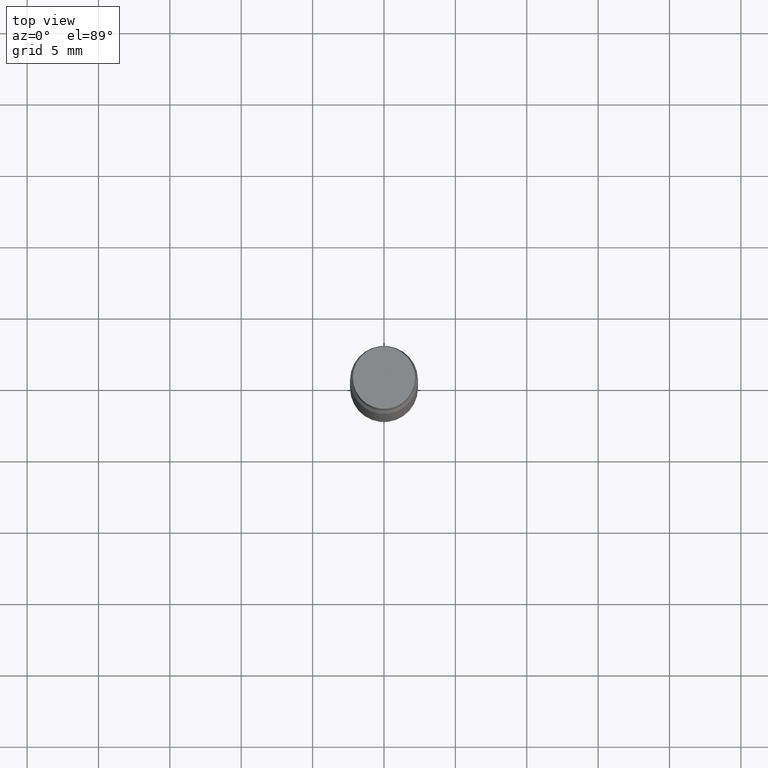
[diagram: clean part render]
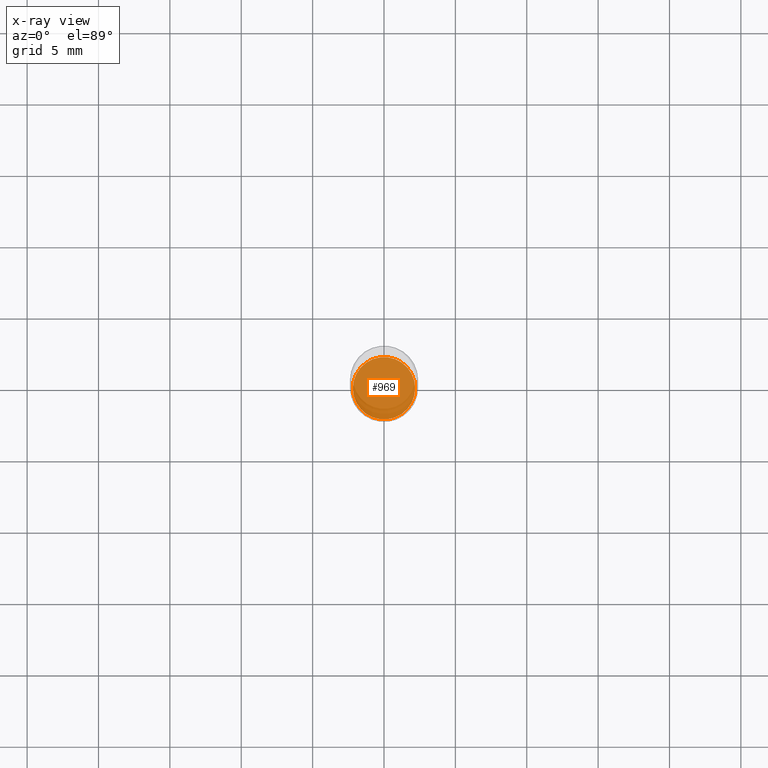
[diagram: x-ray — body ghosted, one internal face saturated and labeled with its STEP entity id]
A machine part, top view, then the same camera in x-ray: the body is ghosted and one INTERNAL B-rep face — a face not visible from any outside direction — is saturated and labeled: STEP entity #969.
In plain terms, the highlighted planar face has unit normal (0, -0, -1).
Its self-contained STEP definition (entity closure, byte-faithful):
#13 = CARTESIAN_POINT ( 'NONE',  ( -0.08594999999999998475, -5.827580107440954061E-15, -1.688000000000000167 ) ) ;
#36 = CIRCLE ( 'NONE', #583, 0.08594999999999998475 ) ;
#68 = CARTESIAN_POINT ( 'NONE',  ( 4.127951344840510809E-29, -5.893620499967230340E-15, -1.688000000000000167 ) ) ;
#112 = VERTEX_POINT ( 'NONE', #13 ) ;
#150 = ORIENTED_EDGE ( 'NONE', *, *, #285, .T. ) ;
#255 = AXIS2_PLACEMENT_3D ( 'NONE', #651, #521, #968 ) ;
#285 = EDGE_CURVE ( 'NONE', #301, #112, #393, .T. ) ;
#286 = FACE_OUTER_BOUND ( 'NONE', #974, .T. ) ;
#301 = VERTEX_POINT ( 'NONE', #337 ) ;
#337 = CARTESIAN_POINT ( 'NONE',  ( 0.08594999999999998475, -6.493806142114363777E-15, -1.688000000000000167 ) ) ;
#343 = DIRECTION ( 'NONE',  ( -2.445468806185136597E-29, 3.491481338843145583E-15, 1.000000000000000000 ) ) ;
#393 = CIRCLE ( 'NONE', #949, 0.08594999999999998475 ) ;
#458 = EDGE_CURVE ( 'NONE', #112, #301, #36, .T. ) ;
#481 = CARTESIAN_POINT ( 'NONE',  ( 4.127951344840510809E-29, -5.893620499967230340E-15, -1.688000000000000167 ) ) ;
#521 = DIRECTION ( 'NONE',  ( 2.438088387897960049E-29, -3.491481338843145188E-15, -1.000000000000000000 ) ) ;
#579 = PLANE ( 'NONE',  #255 ) ;
#583 = AXIS2_PLACEMENT_3D ( 'NONE', #68, #889, #830 ) ;
#651 = CARTESIAN_POINT ( 'NONE',  ( 6.001856421471757400E-16, 0.08594999999999410056, -1.688000000000000389 ) ) ;
#652 = ORIENTED_EDGE ( 'NONE', *, *, #458, .T. ) ;
#830 = DIRECTION ( 'NONE',  ( 1.000000000000000000, -6.982962677686261977E-15, 0.000000000000000000 ) ) ;
#859 = DIRECTION ( 'NONE',  ( 1.000000000000000000, -6.982962677686261977E-15, 0.000000000000000000 ) ) ;
#889 = DIRECTION ( 'NONE',  ( -2.445468806185136597E-29, 3.491481338843145583E-15, 1.000000000000000000 ) ) ;
#949 = AXIS2_PLACEMENT_3D ( 'NONE', #481, #343, #859 ) ;
#968 = DIRECTION ( 'NONE',  ( -1.000000000000000000, 6.982962677686265922E-15, -4.876176775795935793E-29 ) ) ;
#969 = ADVANCED_FACE ( 'NONE', ( #286 ), #579, .F. ) ;
#974 = EDGE_LOOP ( 'NONE', ( #150, #652 ) ) ;